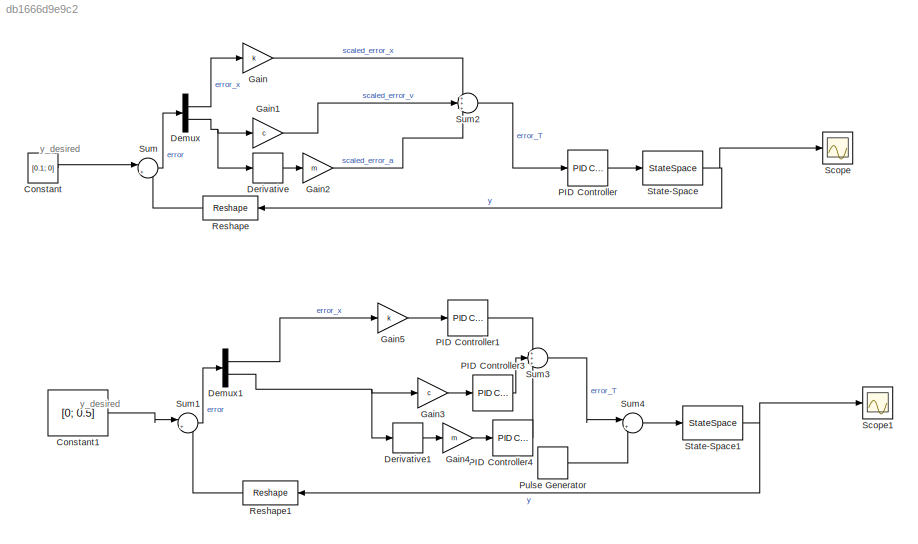
MODEL slx_db1666d9e9c2
KIND model
CONFIG AbsTol = auto
CONFIG EnableMultiTasking = off
CONFIG FixedStep = auto
CONFIG MaxStep = auto
CONFIG MinStep = auto
CONFIG RelTol = 1e-3
CONFIG SampleTimeConstraint = Unconstrained
CONFIG SolverName = VariableStepAuto
CONFIG StartTime = 0.0
CONFIG StopTime = 1000
BLOCK [Constant] Constant
  Commented = on
  Value = [0.1; 0]
  VectorParams1D = off
BLOCK [Constant] Constant1
  Value = [0; 0.5]
  VectorParams1D = off
BLOCK [Demux] Demux
  Commented = on
  Outputs = 2
  Ports = [1, 2]
BLOCK [Demux] Demux1
  Outputs = 2
  Ports = [1, 2]
BLOCK [Derivative] Derivative
  Commented = on
BLOCK [Derivative] Derivative1
BLOCK [Gain] Gain
  Commented = on
  Gain = k
BLOCK [Gain] Gain1
  Commented = on
  Gain = c
BLOCK [Gain] Gain2
  Commented = on
  Gain = m
BLOCK [Gain] Gain3
  Gain = c
BLOCK [Gain] Gain4
  Gain = m
BLOCK [Gain] Gain5
  Gain = k
BLOCK [Reference] PID Controller  REF=slpidlib/PID Controller
  Commented = on
  Ports = [1, 1]
  SourceBlock = slpidlib/PID Controller
  SourceProductBaseCode = SL
  SourceType = PID 1dof
BLOCK [Reference] PID Controller1  REF=slpidlib/PID Controller
  Ports = [1, 1]
  SourceBlock = slpidlib/PID Controller
  SourceProductBaseCode = SL
  SourceType = PID 1dof
BLOCK [Reference] PID Controller3  REF=slpidlib/PID Controller
  Ports = [1, 1]
  SourceBlock = slpidlib/PID Controller
  SourceProductBaseCode = SL
  SourceType = PID 1dof
BLOCK [Reference] PID Controller4  REF=slpidlib/PID Controller
  Ports = [1, 1]
  SourceBlock = slpidlib/PID Controller
  SourceProductBaseCode = SL
  SourceType = PID 1dof
BLOCK [DiscretePulseGenerator] Pulse Generator
  Period = 500
  Ports = [0, 1]
  PulseType = Time based
  PulseWidth = 0.1
BLOCK [Reshape] Reshape
  Commented = on
  OutputDimensionality = Customize
  OutputDimensions = [2,1]
  Ports = [1, 1]
BLOCK [Reshape] Reshape1
  OutputDimensionality = Customize
  OutputDimensions = [2,1]
  Ports = [1, 1]
BLOCK [Scope] Scope
  Commented = on
  Floating = off
  NumInputPorts = 1
  Ports = [1]
  ScopeSpecificationString = Simulink.scopes.TimeScopeBlockCfg('CurrentConfiguration', extmgr.ConfigurationSet(extmgr.Configuration('Core','General UI',true),extmgr.Configuration('Core','Source UI',true),extmgr.Configuration('Sources','WiredSimulink',true),extmgr.Configuration('Visuals','Time Domain',true,'SerializedDisplays',{struct('MinYLimReal','-0.08159','MaxYLimReal','0.18304','YLabelReal','','MinYLimMag','0.00000','MaxY...<+1360ch>
BLOCK [Scope] Scope1
  Floating = off
  NumInputPorts = 1
  Ports = [1]
  ScopeSpecificationString = Simulink.scopes.TimeScopeBlockCfg('CurrentConfiguration', extmgr.ConfigurationSet(extmgr.Configuration('Core','General UI',true),extmgr.Configuration('Core','Source UI',true),extmgr.Configuration('Sources','WiredSimulink',true,'DataLoggingVariableName','ScopeData1'),extmgr.Configuration('Visuals','Time Domain',true,'SerializedDisplays',{struct('MinYLimReal','-0.04728','MaxYLimReal','0.14897','YLab...<+1468ch>
BLOCK [StateSpace] State-Space
  A = A
  B = B
  C = C
  Commented = on
  D = D
  InitialCondition = 0
  Ports = [1, 1]
BLOCK [StateSpace] State-Space1
  A = A
  B = B
  C = C
  D = D
  InitialCondition = 0
  Ports = [1, 1]
BLOCK [Sum] Sum
  Commented = on
  Inputs = |+-
  Ports = [2, 1]
BLOCK [Sum] Sum1
  Inputs = |+-
  Ports = [2, 1]
BLOCK [Sum] Sum2
  Commented = on
  Inputs = +++
  Ports = [3, 1]
BLOCK [Sum] Sum3
  Inputs = +++
  Ports = [3, 1]
BLOCK [Sum] Sum4
  Inputs = |++
  Ports = [2, 1]
ANNOTATION (root): y_desired
LINE Constant1:1 -> Sum1:1
LINE Constant:1 -> Sum:1
LINE Demux1:1 -> Gain5:1
NET Demux1:2 -> Derivative1:1, Gain3:1
LINE Demux:1 -> Gain:1
NET Demux:2 -> Derivative:1, Gain1:1
LINE Derivative1:1 -> Gain4:1
LINE Derivative:1 -> Gain2:1
LINE Gain1:1 -> Sum2:2
LINE Gain2:1 -> Sum2:3
LINE Gain3:1 -> PID Controller3:1
LINE Gain4:1 -> PID Controller4:1
LINE Gain5:1 -> PID Controller1:1
LINE Gain:1 -> Sum2:1
LINE PID Controller1:1 -> Sum3:1
LINE PID Controller3:1 -> Sum3:2
LINE PID Controller4:1 -> Sum3:3
LINE PID Controller:1 -> State-Space:1
LINE Pulse Generator:1 -> Sum4:2
LINE Reshape1:1 -> Sum1:2
LINE Reshape:1 -> Sum:2
NET State-Space1:1 -> Reshape1:1, Scope1:1
NET State-Space:1 -> Reshape:1, Scope:1
LINE Sum1:1 -> Demux1:1
LINE Sum2:1 -> PID Controller:1
LINE Sum3:1 -> Sum4:1
LINE Sum4:1 -> State-Space1:1
LINE Sum:1 -> Demux:1
note: NET lines group one-source signal fan-out (src -> all destinations, sorted); 1:1 wires keep LINE
